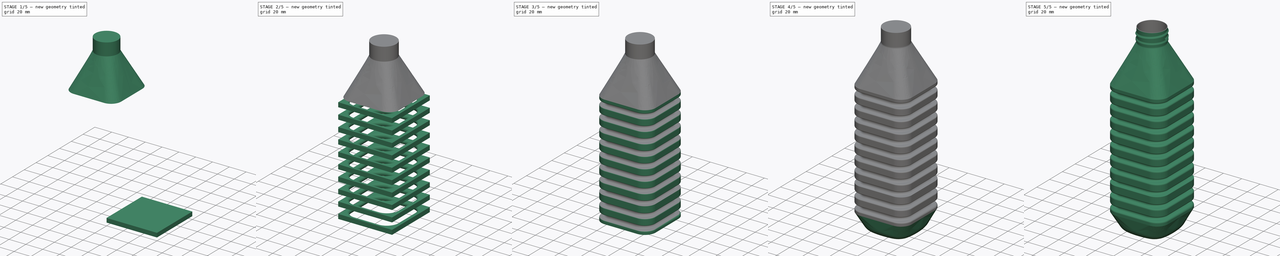
[diagram: build sequence overview — one tinted view per stage of 5, left to right]
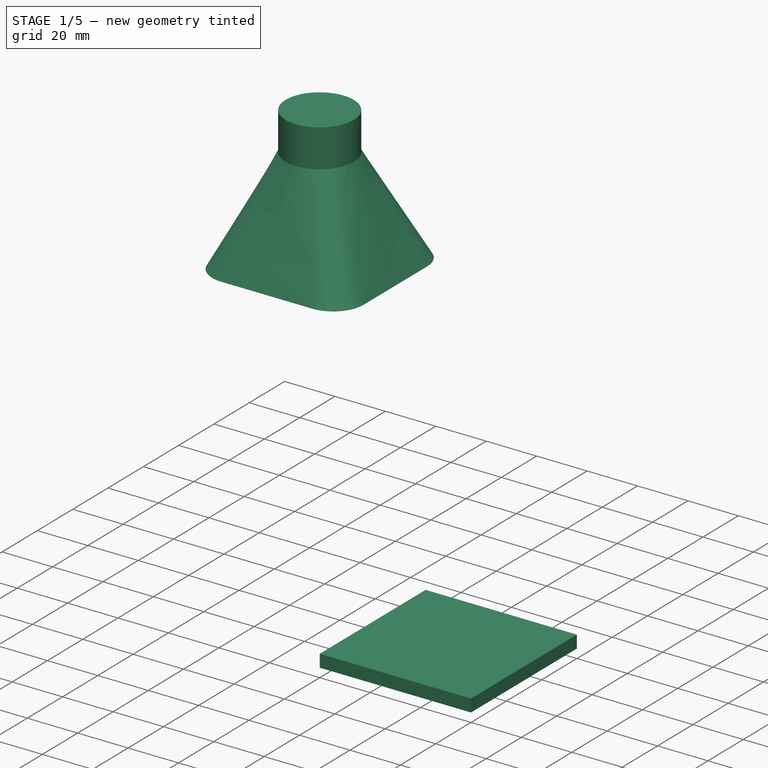
[diagram: stage 1 of 5 — iso view after this stage's code; geometry added in this stage tinted green]
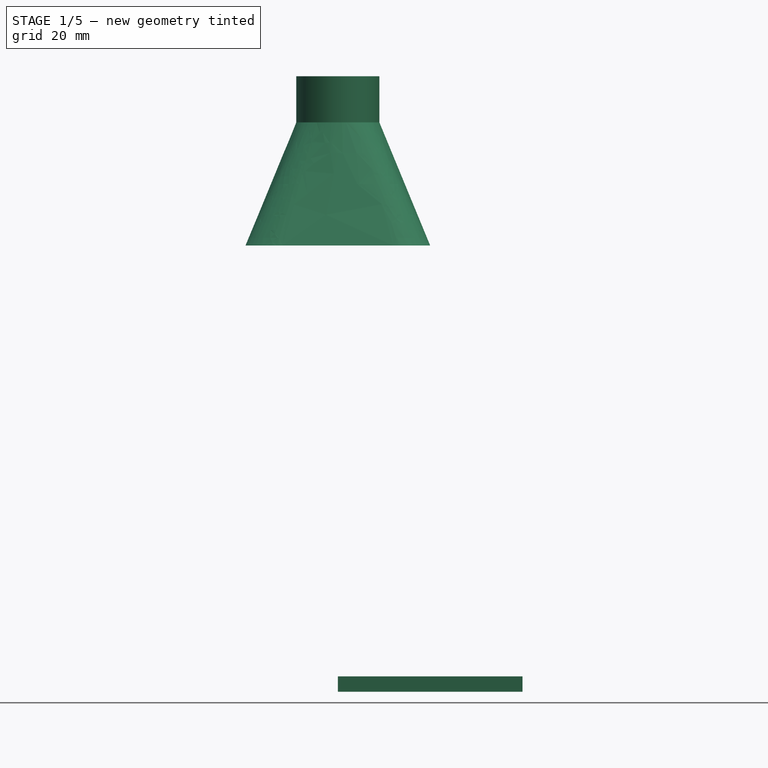
[diagram: stage 1 of 5 — front view after this stage's code; geometry added in this stage tinted green]
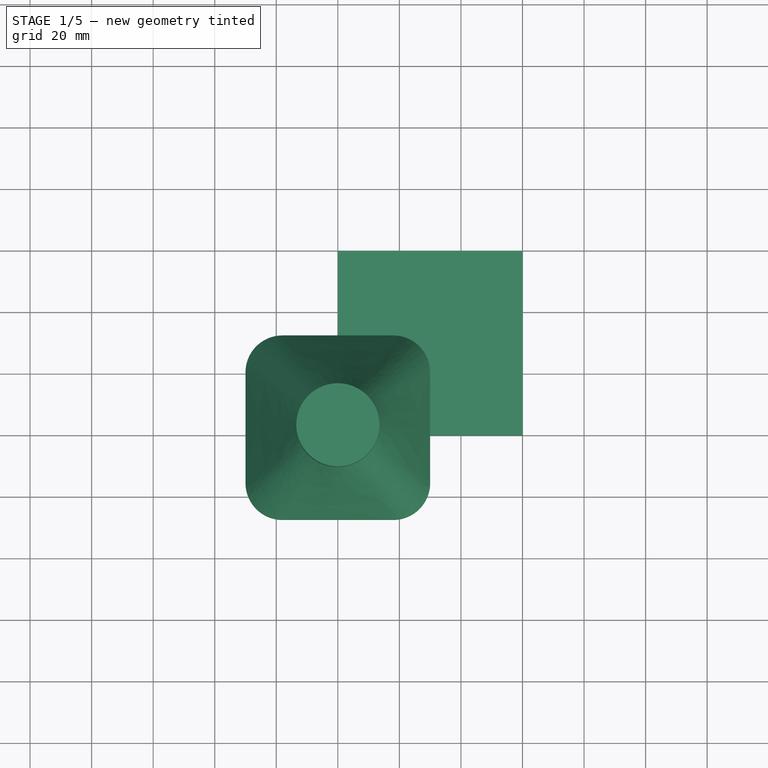
[diagram: stage 1 of 5 — top view after this stage's code; geometry added in this stage tinted green]
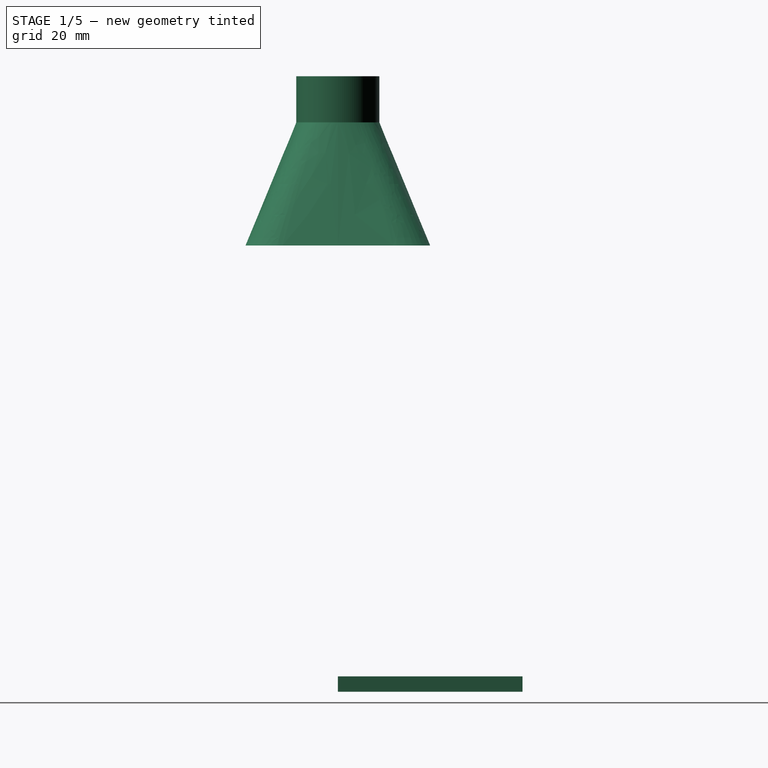
[diagram: stage 1 of 5 — right view after this stage's code; geometry added in this stage tinted green]
FCSTD DOCUMENT  (FreeCAD 0.15R4671 (Git))
Label: plastic_bottle
License: All rights reserved
LicenseURL: http://en.wikipedia.org/wiki/All_rights_reserved
objects: Part::Fillet×5, Sketcher::SketchObject×3, Part::Box×2, Part::Cut×2, Part::Circle×2, Part::Loft×2, Part::MultiFuse×2, Part::Extrusion×1, Part::FeaturePython×1, Part::Cylinder×1, Part::Helix×1, Part::Sweep×1, Part::Revolution×1, Part::Thickness×1
note: 25 computed .brp shape members not serialized (recipe doc carries the construction recipe); baked Part::Feature solids carry a one-line shape summary decoded from their .brp

FEATURE [Part::Box] Box001  label="Cube001"
  Height = 5
  Length = 60
  Width = 60
FEATURE [Part::Box] Box002  label="Cube002"
  Height = 5
  Length = 51
  Placement = pos=(4,4,0) rot=(0,0,1;0rad)
  Width = 51
FEATURE [Part::Circle] Circle001
  Angle0 = 0
  Angle1 = 360
  Placement = pos=(0,0,60) rot=(0,0,1;0rad)
  Radius = 13.5
FEATURE [Part::Loft] Loft001  label="Neck"
  Closed = false
  Placement = pos=(0,0,125) rot=(0,0,1;0rad)
  Ruled = false
  Sections = -> [Sketch,Circle001]
  Solid = true
FEATURE [Part::Cylinder] Cylinder
  Angle = 360
  Height = 15
  Placement = pos=(0,0,185) rot=(0,0,1;0rad)
  Radius = 13.5
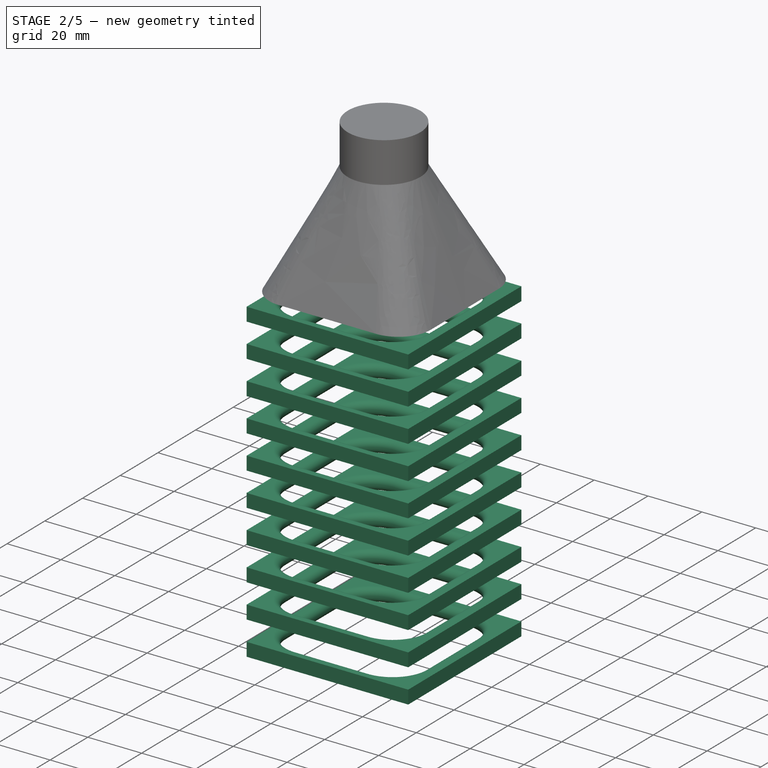
[diagram: stage 2 of 5 — iso view after this stage's code; geometry added in this stage tinted green]
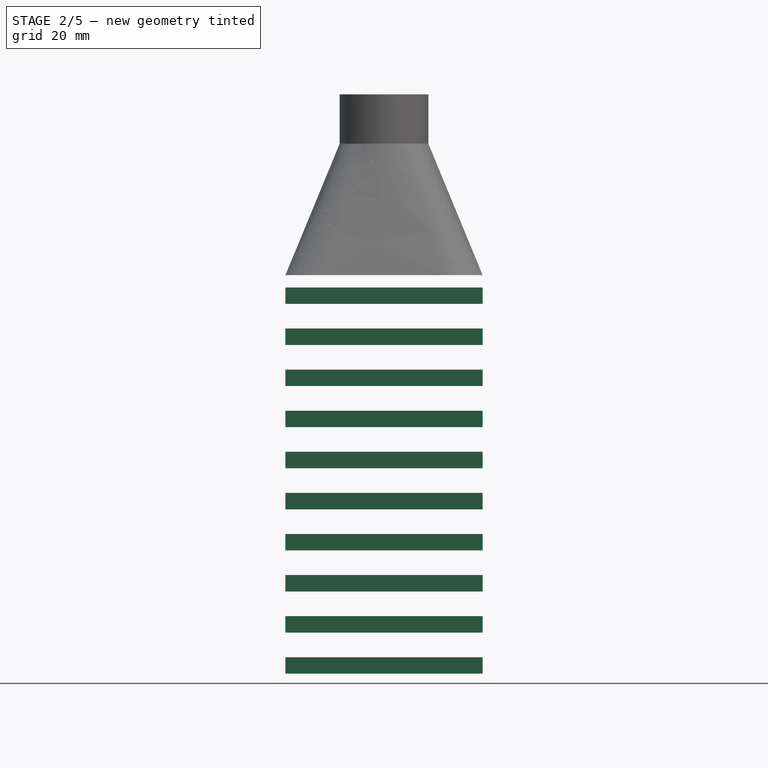
[diagram: stage 2 of 5 — front view after this stage's code; geometry added in this stage tinted green]
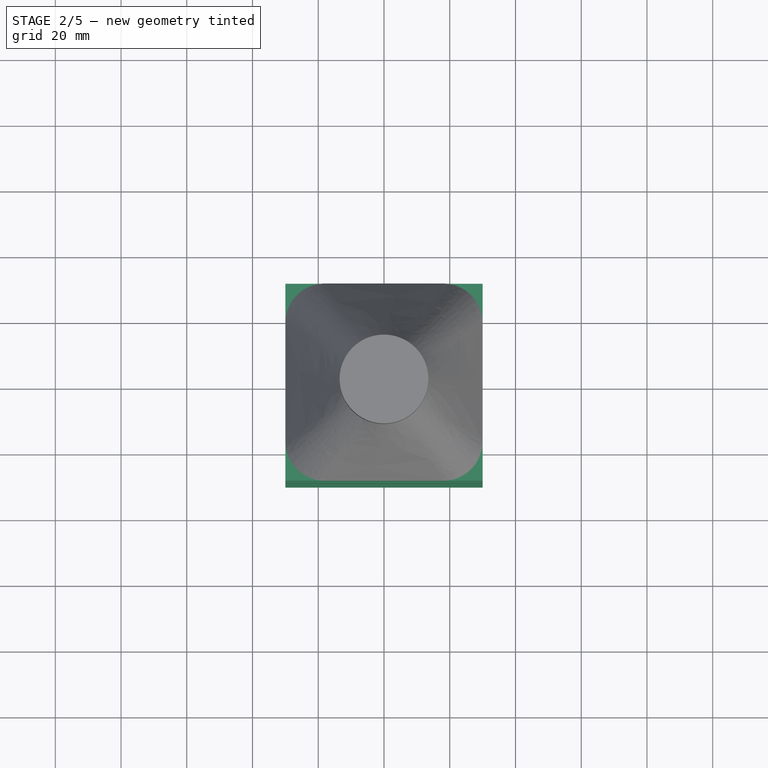
[diagram: stage 2 of 5 — top view after this stage's code; geometry added in this stage tinted green]
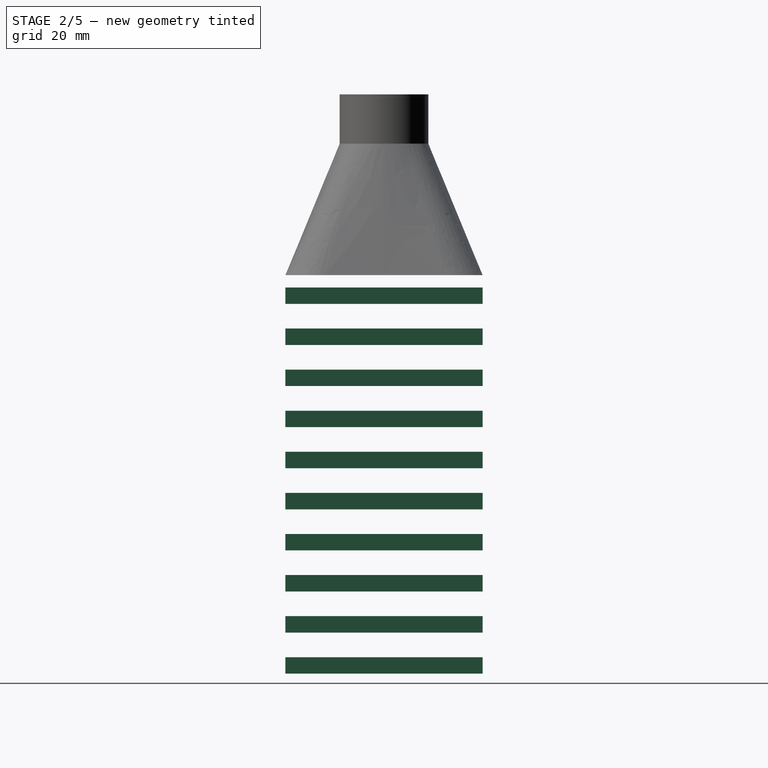
[diagram: stage 2 of 5 — right view after this stage's code; geometry added in this stage tinted green]
FEATURE [Part::Cut] Cut
  Base = -> Box001
  Placement = pos=(-30,-30,23.75) rot=(0,0,1;0rad)
  Tool = -> Box002
FEATURE [Part::Fillet] Fillet001
  Base = -> Cut
  Edges = 4 edges r=12: [Edge21,Edge22,Edge23,Edge24]
FEATURE [Part::Fillet] Fillet002
  Base = -> Fillet001
  Edges = 16 edges r=2.4: [Edge1,Edge2,Edge3,Edge4,Edge5,Edge6,Edge7,Edge8,Edge13,Edge16,Edge18,Edge21,Edge23,Edge24,Edge26,Edge28]
FEATURE [Part::FeaturePython] Array  # Draft array (typed FeaturePython)
  Angle = 360
  ArrayType = 0
  Axis = (0,0,1)
  Base = -> Fillet002
  Center = (0,0,0)
  Fuse = false
  IntervalAxis = (0,0,0)
  IntervalX = (1,0,0)
  IntervalY = (0,1,0)
  IntervalZ = (0,0,12.5)
  NumberPolar = 1
  NumberX = 1
  NumberY = 1
  NumberZ = 10
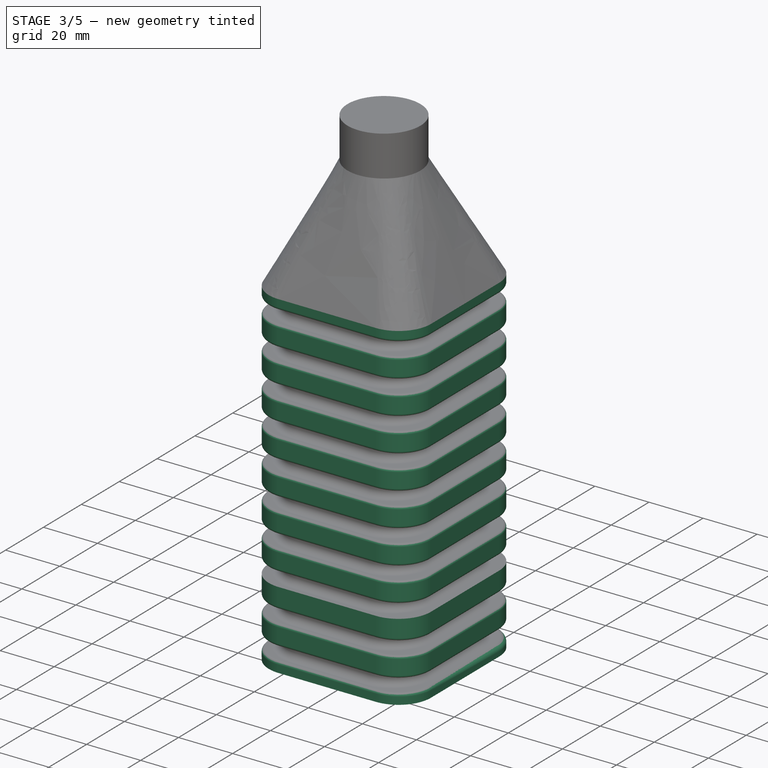
[diagram: stage 3 of 5 — iso view after this stage's code; geometry added in this stage tinted green]
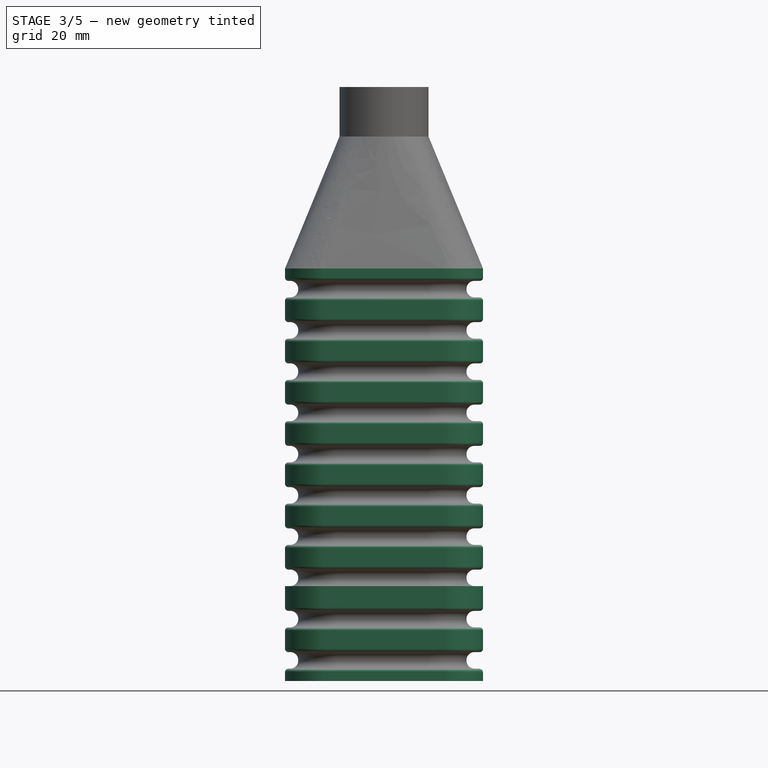
[diagram: stage 3 of 5 — front view after this stage's code; geometry added in this stage tinted green]
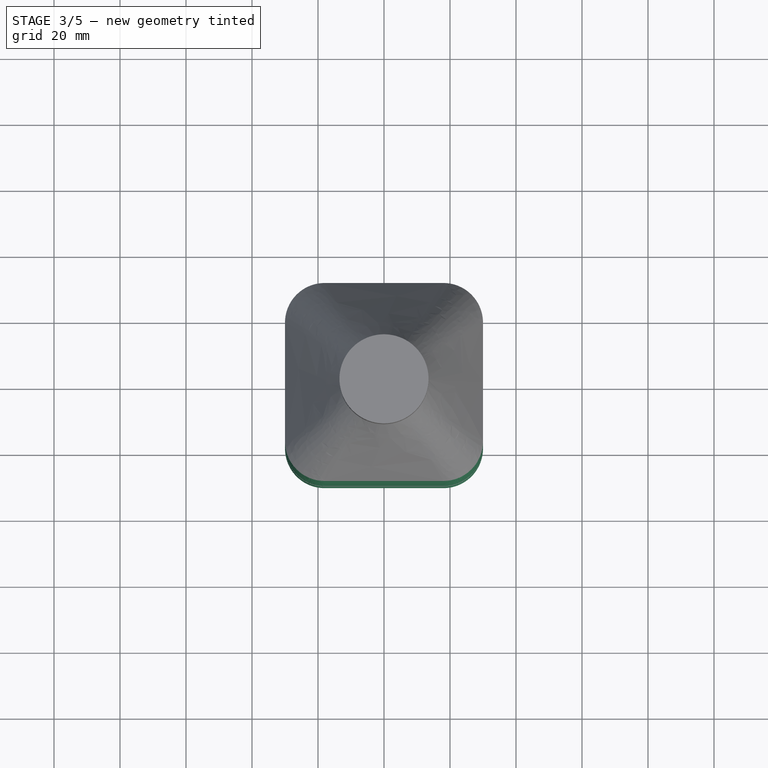
[diagram: stage 3 of 5 — top view after this stage's code; geometry added in this stage tinted green]
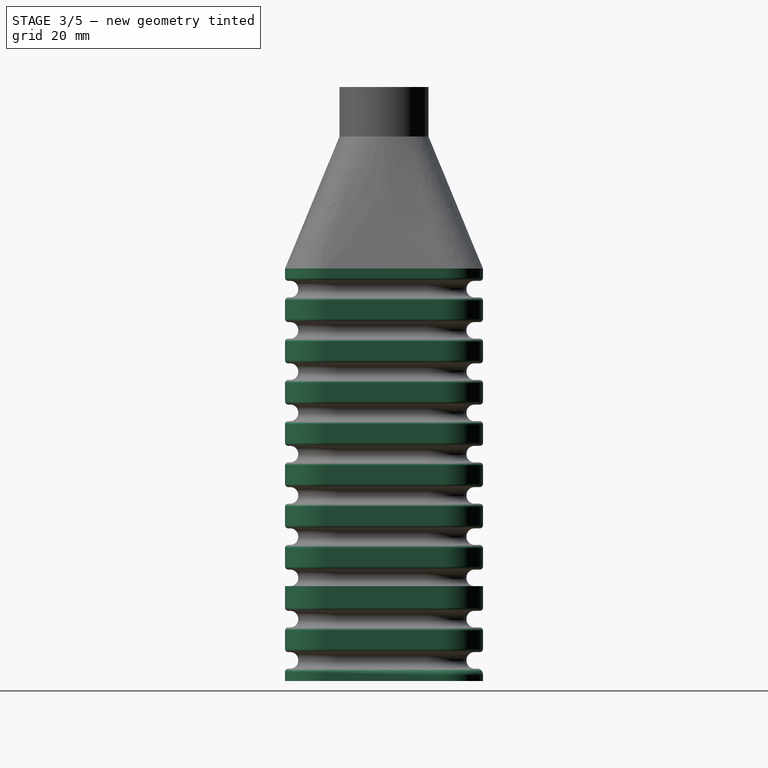
[diagram: stage 3 of 5 — right view after this stage's code; geometry added in this stage tinted green]
FEATURE [Part::Extrusion] Extrude
  Base = -> Sketch
  Dir = (0,0,125)
  Solid = true
FEATURE [Part::Cut] Cut001
  Base = -> Extrude
  Tool = -> Array
FEATURE [Part::Fillet] Fillet003  label="Striated"
  Base = -> Cut001
  Edges = 20 edges: [Edge15 r=2,Edge18 r=1,Edge87 r=1,Edge103 r=1,Edge167 r=1,Edge247 r=1,Edge263 r=1,Edge327 r=1,Edge343 r=1,Edge407 r=1,Edge423 r=1,Edge487 r=1,Edge503 r=1,Edge567 r=1,Edge583 r=1,Edge647 r=1,Edge663 r=1,Edge727 r=1,Edge743 r=1,Edge807 r=1]
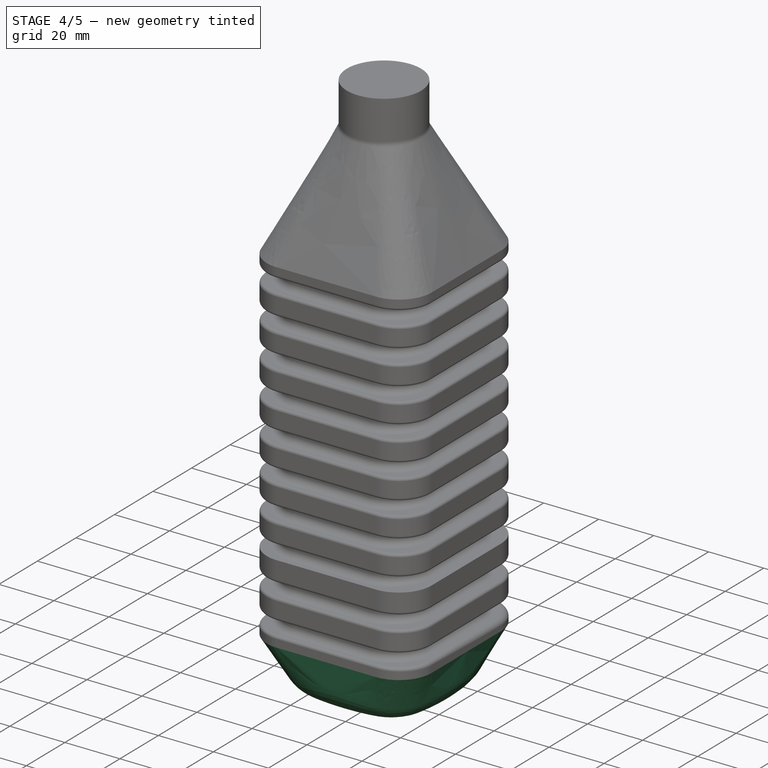
[diagram: stage 4 of 5 — iso view after this stage's code; geometry added in this stage tinted green]
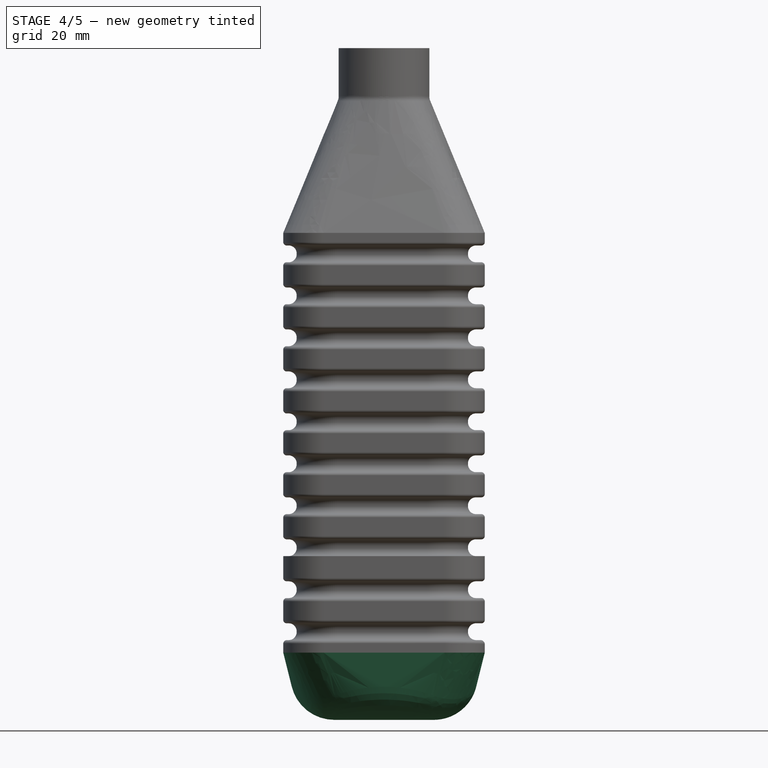
[diagram: stage 4 of 5 — front view after this stage's code; geometry added in this stage tinted green]
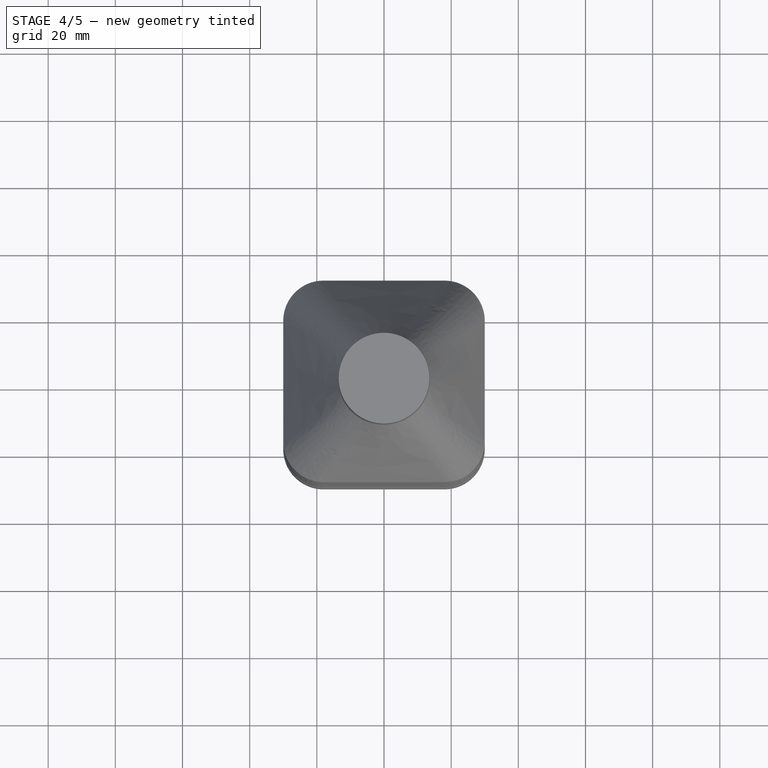
[diagram: stage 4 of 5 — top view after this stage's code; geometry added in this stage tinted green]
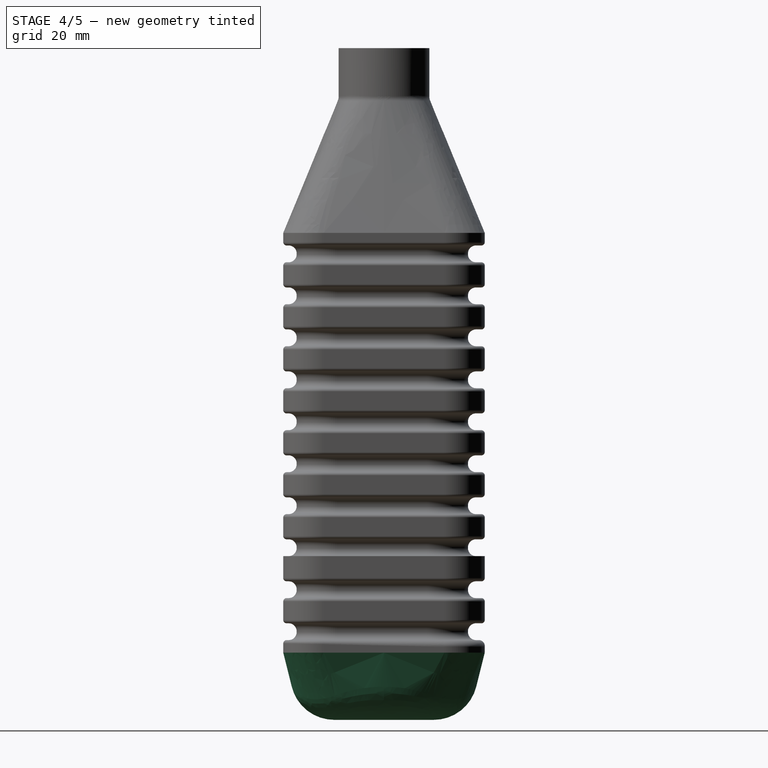
[diagram: stage 4 of 5 — right view after this stage's code; geometry added in this stage tinted green]
FEATURE [Part::Circle] Circle
  Angle0 = 0
  Angle1 = 360
  Radius = 25
FEATURE [Sketcher::SketchObject] Sketch
  Placement = pos=(0,0,20) rot=(0,0,1;0rad)
  sketch-geometry (8):
    g0: LineSegment StartX=-18 StartY=30 StartZ=0 EndX=18 EndY=30 EndZ=0
    g1: LineSegment StartX=30 StartY=18 StartZ=0 EndX=30 EndY=-18 EndZ=0
    g2: LineSegment StartX=18 StartY=-30 StartZ=0 EndX=-18 EndY=-30 EndZ=0
    g3: LineSegment StartX=-30 StartY=-18 StartZ=0 EndX=-30 EndY=18 EndZ=0
    g4: ArcOfCircle CenterX=-18 CenterY=18 CenterZ=0 NormalX=0 NormalY=0 NormalZ=1 Radius=12 StartAngle=1.5708 EndAngle=3.14159
    g5: ArcOfCircle CenterX=-18 CenterY=-18 CenterZ=0 NormalX=0 NormalY=0 NormalZ=1 Radius=12 StartAngle=3.14159 EndAngle=4.71239
    g6: ArcOfCircle CenterX=18 CenterY=-18 CenterZ=0 NormalX=0 NormalY=0 NormalZ=1 Radius=12 StartAngle=4.71239 EndAngle=6.28319
    g7: ArcOfCircle CenterX=18 CenterY=18 CenterZ=0 NormalX=0 NormalY=0 NormalZ=1 Radius=12 StartAngle=0 EndAngle=1.5708
  constraints (22):
    c: Horizontal(g0)
    c: Horizontal(g2)
    c: Vertical(g1)
    c: Vertical(g3)
    c: Tangent(g3,g4) = 1.5708
    c: Tangent(g0,g4) = 1.5708
    c: Tangent(g3,g5) = 1.5708
    c: Tangent(g2,g5) = 1.5708
    c: Tangent(g2,g6) = 1.5708
    c: Tangent(g1,g6) = 1.5708
    c: Tangent(g1,g7) = 1.5708
    c: Tangent(g0,g7) = 1.5708
    c: Equal(g7,g4)
    c: Equal(g4,g5)
    c: Equal(g5,g6)
    c: Equal(g0,g1)
    c: Equal(g1,g2)
    c: Equal(g2,g3)
    c: Radius(g7) = 12
    c: DistanceY(g0,g2) = -60
    c: DistanceY(g-1,g0) = 30
    c: DistanceX(g-1,g3) = -30
FEATURE [Part::Loft] Loft
  Closed = false
  Ruled = false
  Sections = -> [Circle,Sketch]
  Solid = true
FEATURE [Part::Fillet] Fillet  label="Bottom"
  Base = -> Loft
  Edges = 9 edges r=13: [Edge1,Edge5,Edge8,Edge11,Edge14,Edge17,Edge20,Edge23,Edge26]
FEATURE [Part::MultiFuse] Fusion
  Shapes = -> [Fillet,Fillet003,Cylinder,Loft001]
FEATURE [Part::Fillet] Fillet004
  Base = -> Fusion
  Edges = 9 edges r=3: [Edge1169,Edge1171,Edge1173,Edge1175,Edge1177,Edge1179,Edge1181,Edge1183,Edge1184]
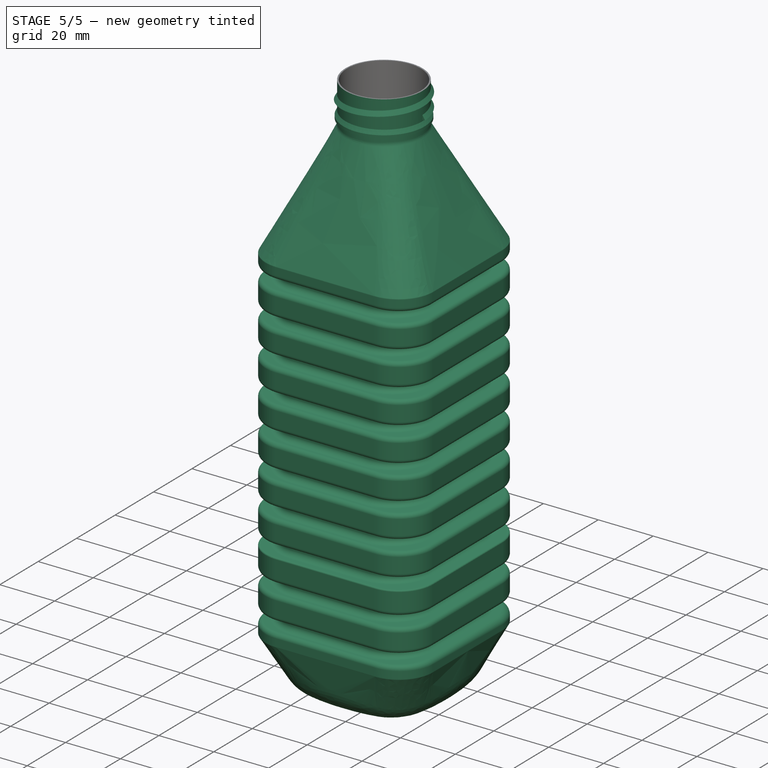
[diagram: stage 5 of 5 — iso view after this stage's code; geometry added in this stage tinted green]
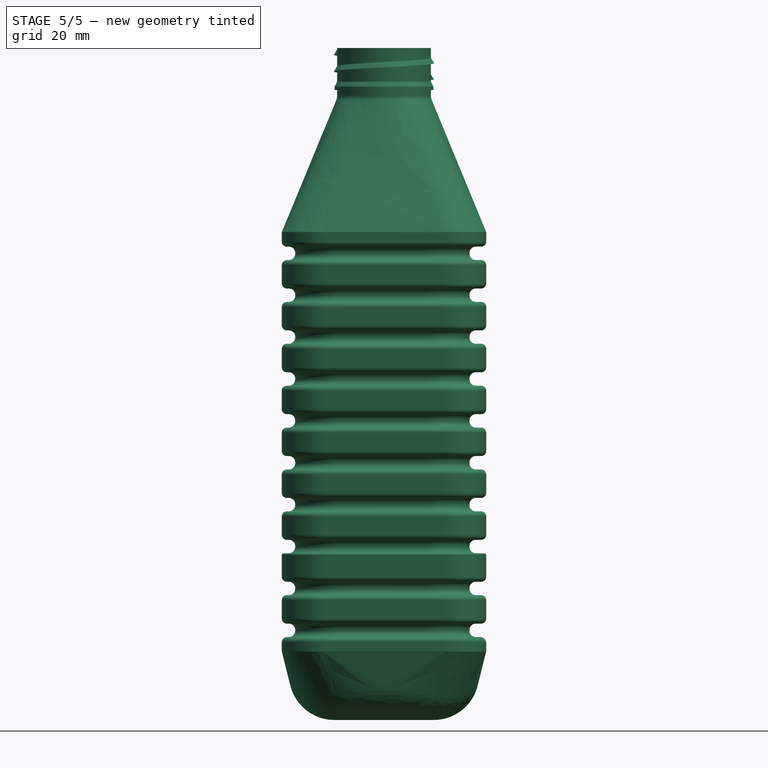
[diagram: stage 5 of 5 — front view after this stage's code; geometry added in this stage tinted green]
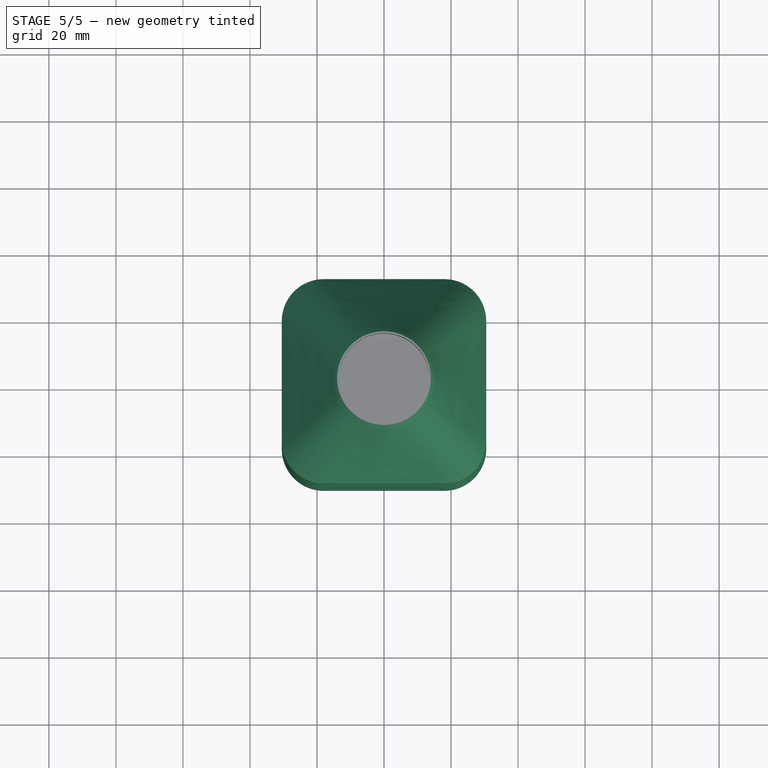
[diagram: stage 5 of 5 — top view after this stage's code; geometry added in this stage tinted green]
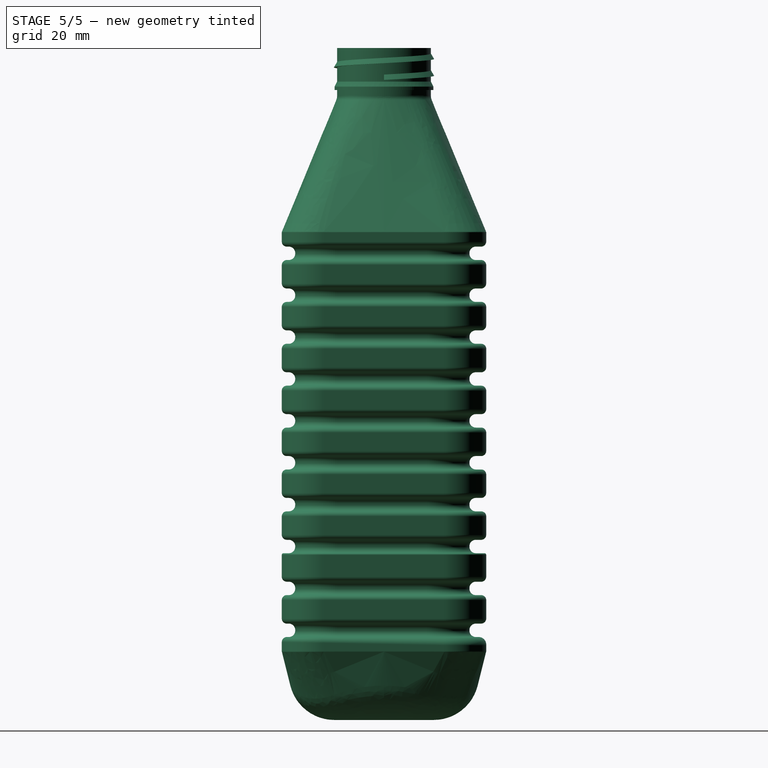
[diagram: stage 5 of 5 — right view after this stage's code; geometry added in this stage tinted green]
FEATURE [Sketcher::SketchObject] Sketch001
  Placement = pos=(0,0,0) rot=(1,0,0;1.5708rad)
  sketch-geometry (3):
    g0: LineSegment StartX=-13.75 StartY=200 StartZ=0 EndX=-14.95 EndY=198 EndZ=0
    g1: LineSegment StartX=-14.95 StartY=198 StartZ=0 EndX=-13.75 EndY=198 EndZ=0
    g2: LineSegment StartX=-13.75 StartY=198 StartZ=0 EndX=-13.75 EndY=200 EndZ=0
  constraints (9):
    c: Coincident(g0,g1)
    c: Horizontal(g1)
    c: Coincident(g1,g2)
    c: Coincident(g2,g0)
    c: DistanceX(g-1,g1) = -13.75
    c: Distance(g1) = 1.2
    c: DistanceY(g2) = 2
    c: DistanceY(g-1,g0) = 200
    c: Vertical(g2)
FEATURE [Part::Helix] Helix
  Angle = 0
  Height = 7.5
  LocalCoord = 0
  Pitch = 5
  Placement = pos=(0,0,192.5) rot=(0,0,1;0rad)
  Radius = 13.75
  Style = 1
FEATURE [Part::Sweep] Sweep
  Frenet = true
  Sections = -> [Sketch001]
  Solid = true
  Spine = -> Helix [Edge2,Edge1]
  Transition = 1
FEATURE [Sketcher::SketchObject] Sketch002
  Placement = pos=(0,0,0) rot=(1,0,0;1.5708rad)
  sketch-geometry (4):
    g0: LineSegment StartX=13.75 StartY=190.5 StartZ=0 EndX=13.75 EndY=187.5 EndZ=0
    g1: LineSegment StartX=13.75 StartY=190.5 StartZ=0 EndX=14.75 EndY=188.5 EndZ=0
    g2: LineSegment StartX=14.75 StartY=188.5 StartZ=0 EndX=14.75 EndY=187.5 EndZ=0
    g3: LineSegment StartX=14.75 StartY=187.5 StartZ=0 EndX=13.75 EndY=187.5 EndZ=0
  constraints (12):
    c: Vertical(g0)
    c: Coincident(g1,g0)
    c: Coincident(g2,g1)
    c: Vertical(g2)
    c: Coincident(g3,g2)
    c: Coincident(g3,g0)
    c: Horizontal(g3)
    c: DistanceX(g3) = -1
    c: DistanceY(g2) = -1
    c: DistanceY(g0) = -3
    c: DistanceY(g-1,g0) = 190.5
    c: DistanceX(g-1,g0) = 13.75
FEATURE [Part::Revolution] Revolve
  Angle = 360
  Axis = (0,0,1)
  Base = (0,0,0)
  Solid = true
  Source = -> Sketch002
FEATURE [Part::Thickness] Thickness
  Faces = -> Fillet004 [Face19]
  Intersection = false
  Join = 0
  Mode = 0
  SelfIntersection = false
  Value = 0.5
FEATURE [Part::MultiFuse] Fusion001
  Shapes = -> [Sweep,Revolve,Thickness]
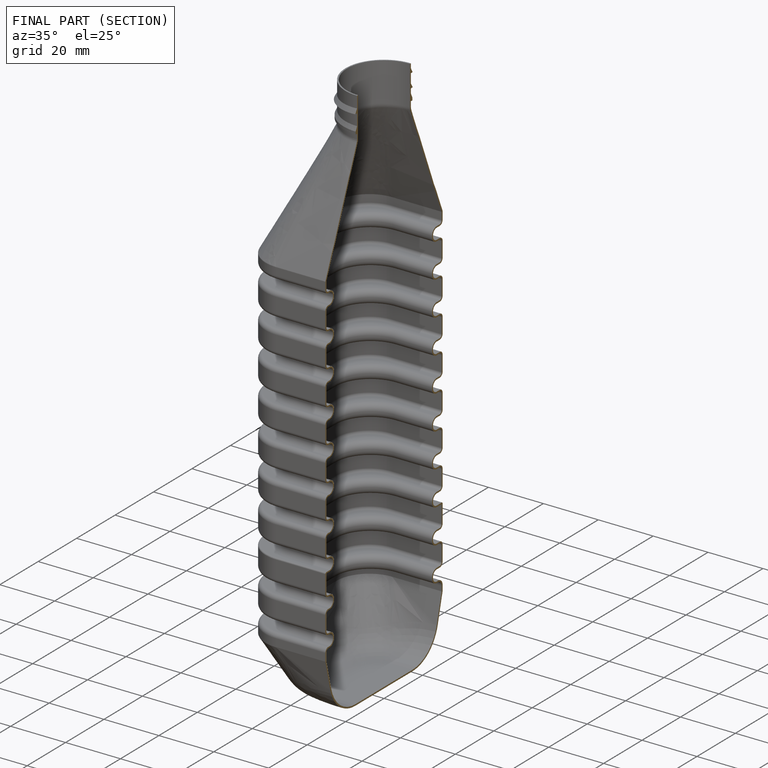
[diagram: finished part — half-section view (interior)]
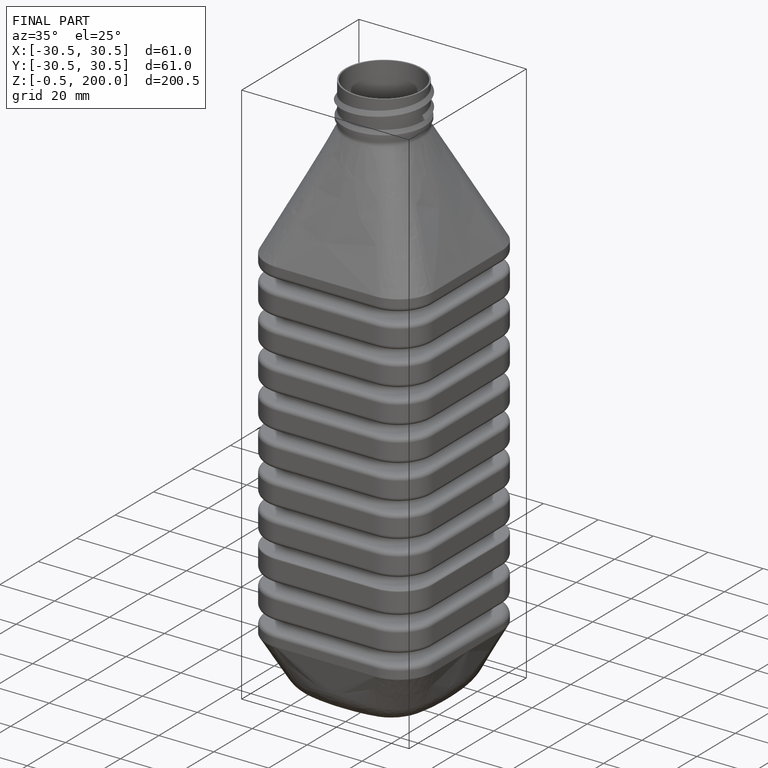
[diagram: finished part — iso view with bounding-box wireframe]
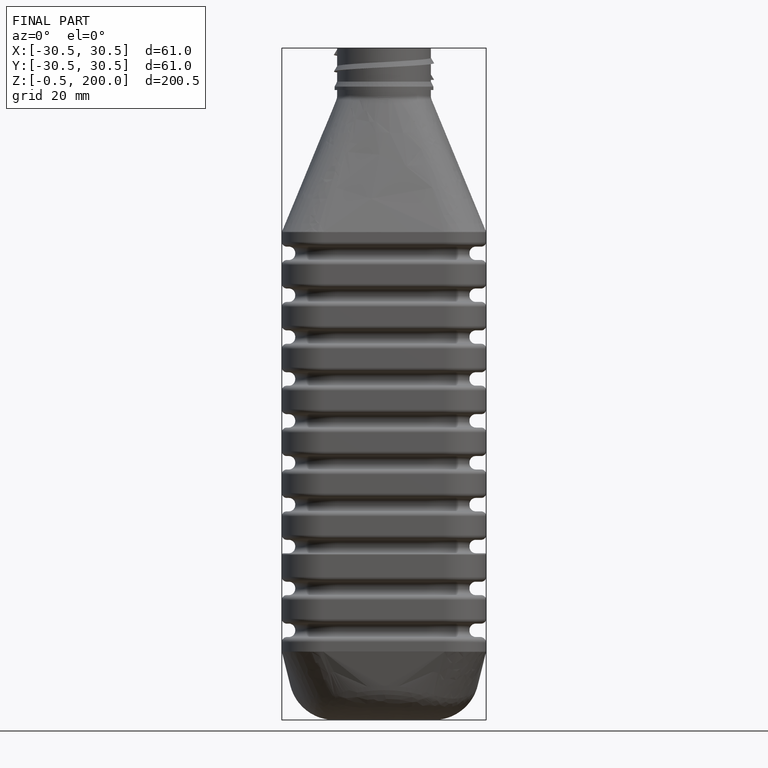
[diagram: finished part — front view with bounding-box wireframe]
